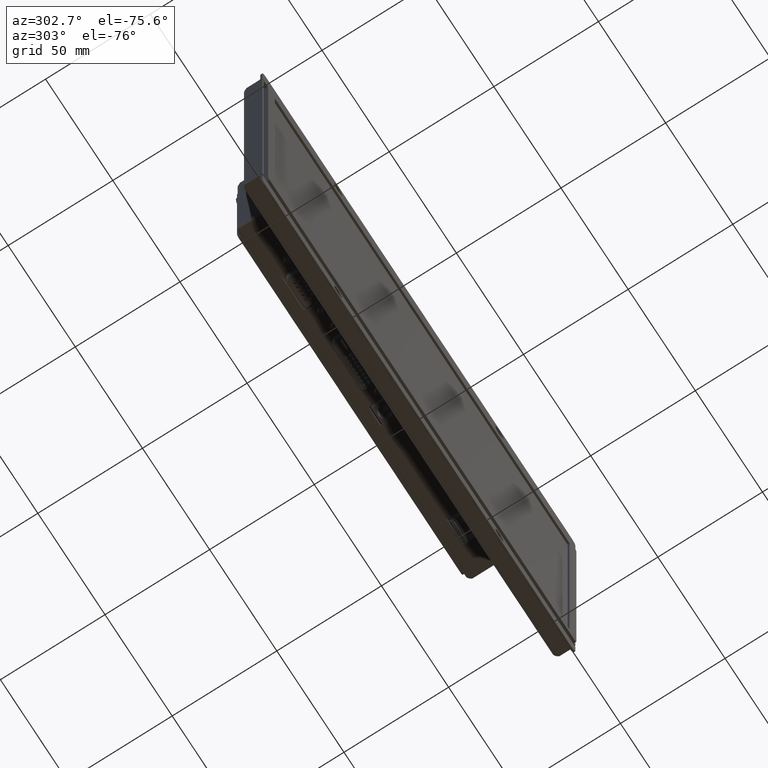
[diagram: clean part render]
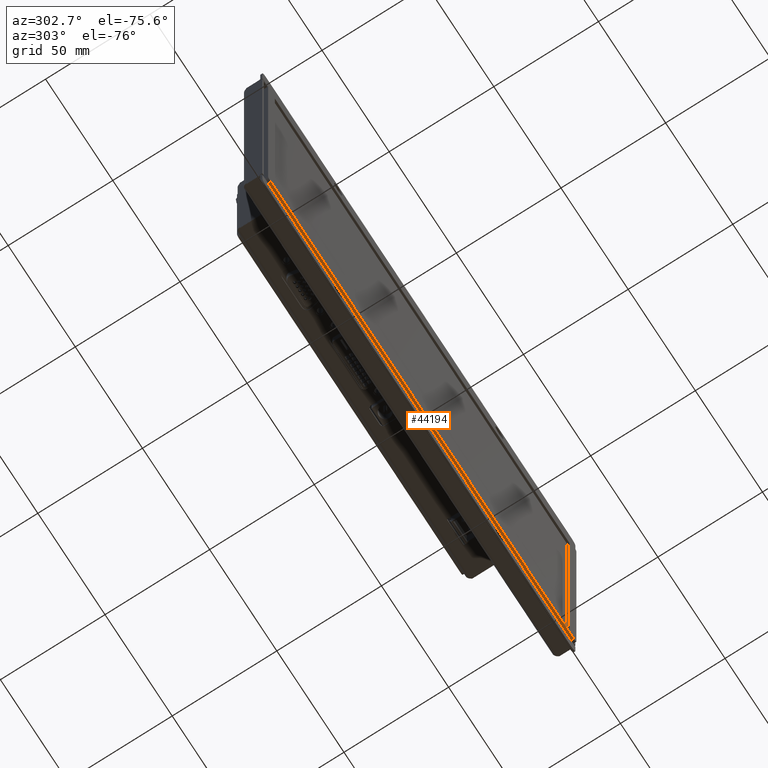
[diagram: same view with one face highlighted and labeled with its STEP entity id]
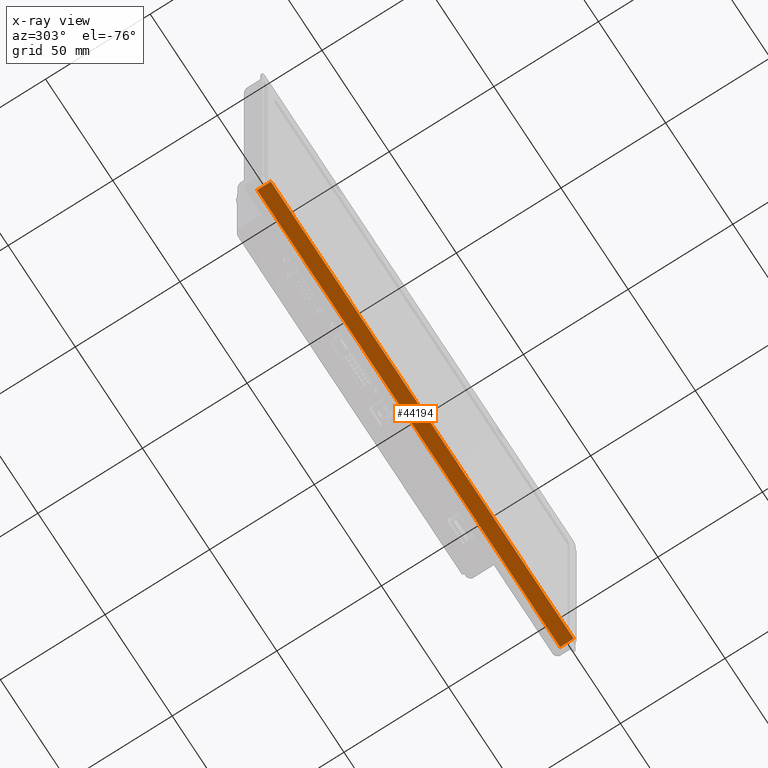
[diagram: x-ray of the same camera — body ghosted, the highlighted face saturated]
A machine part, auxiliary view. The second image highlights one B-rep face of the part: STEP entity #44194.
The next image is the same camera in x-ray: the body ghosted, the highlighted face saturated — about 0% of this face is hidden behind the body in this view.
In plain terms, the highlighted planar face has unit normal (0, 0, -1).
Its self-contained STEP definition (entity closure, byte-faithful):
#4221=FACE_OUTER_BOUND('',#6678,.T.);
#6678=EDGE_LOOP('',(#29028,#29029,#29030,#29031));
#9197=LINE('',#61395,#13064);
#9608=LINE('',#67734,#13475);
#9616=LINE('',#67753,#13483);
#9617=LINE('',#67755,#13484);
#13064=VECTOR('',#50110,10.);
#13475=VECTOR('',#50761,10.);
#13483=VECTOR('',#50777,10.);
#13484=VECTOR('',#50780,10.);
#16929=VERTEX_POINT('',#61392);
#16930=VERTEX_POINT('',#61394);
#17436=VERTEX_POINT('',#67731);
#17437=VERTEX_POINT('',#67733);
#21164=EDGE_CURVE('',#16929,#16930,#9197,.T.);
#21918=EDGE_CURVE('',#17436,#17437,#9608,.T.);
#21928=EDGE_CURVE('',#16930,#17436,#9616,.T.);
#21929=EDGE_CURVE('',#17437,#16929,#9617,.T.);
#29028=ORIENTED_EDGE('',*,*,#21928,.F.);
#29029=ORIENTED_EDGE('',*,*,#21164,.F.);
#29030=ORIENTED_EDGE('',*,*,#21929,.F.);
#29031=ORIENTED_EDGE('',*,*,#21918,.F.);
#40186=PLANE('',#46507);
#44194=ADVANCED_FACE('',(#4221),#40186,.T.);
#46507=AXIS2_PLACEMENT_3D('',#67779,#50807,#50808);
#50110=DIRECTION('',(-1.,7.68274672695624E-30,-8.20963139223824E-16));
#50761=DIRECTION('',(1.,-7.68274672695624E-30,8.20963139223824E-16));
#50777=DIRECTION('',(-7.68274672695624E-30,-1.,-3.31990727226536E-31));
#50780=DIRECTION('',(7.68274672695624E-30,1.,3.31990727226536E-31));
#50807=DIRECTION('center_axis',(8.20963139223824E-16,3.3199072722653E-31,
-1.));
#50808=DIRECTION('ref_axis',(1.,-7.68274672695624E-30,8.20963139223824E-16));
#61392=CARTESIAN_POINT('',(113.68,5.54000000000001,-76.3999999999999));
#61394=CARTESIAN_POINT('',(-111.78,5.54000000000001,-76.4000000000001));
#61395=CARTESIAN_POINT('',(115.68,5.54000000000001,-76.3999999999999));
#67731=CARTESIAN_POINT('',(-111.78,-0.999999999999989,-76.4000000000001));
#67733=CARTESIAN_POINT('',(113.68,-0.999999999999989,-76.3999999999999));
#67734=CARTESIAN_POINT('',(-113.78,-0.999999999999989,-76.4000000000001));
#67753=CARTESIAN_POINT('',(-111.78,5.54000000000001,-76.4000000000001));
#67755=CARTESIAN_POINT('',(113.68,5.54000000000001,-76.3999999999999));
#67779=CARTESIAN_POINT('Origin',(-113.78,5.54000000000001,-76.4000000000001));